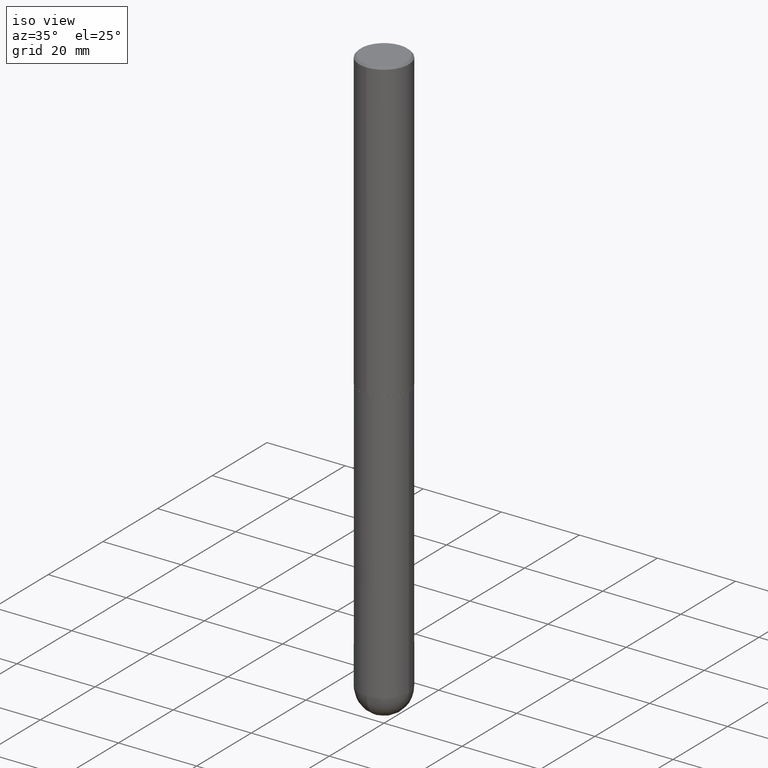
[diagram: clean part render]
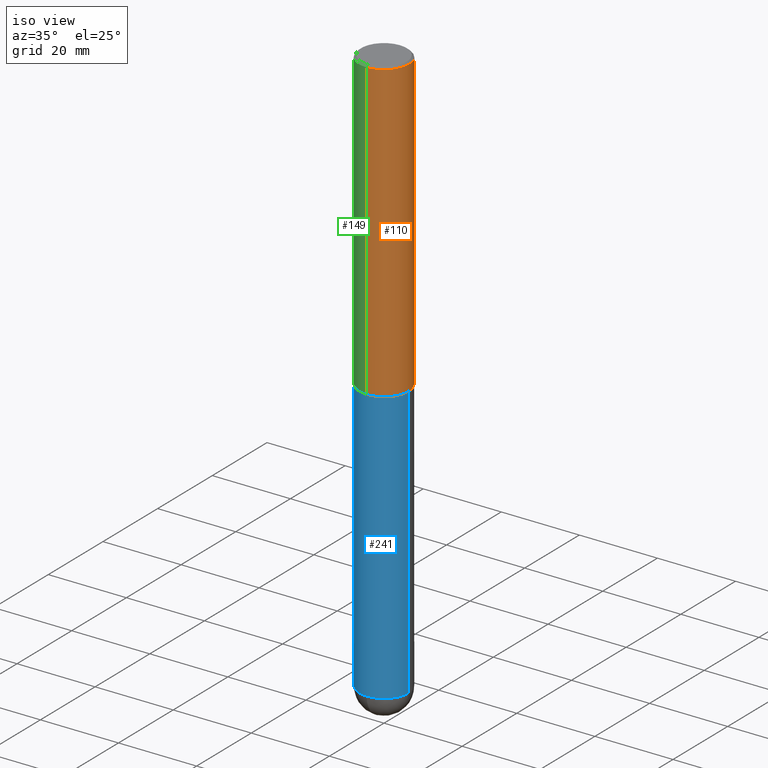
[diagram: same view with three faces highlighted in distinct colors, each labeled with its STEP entity id]
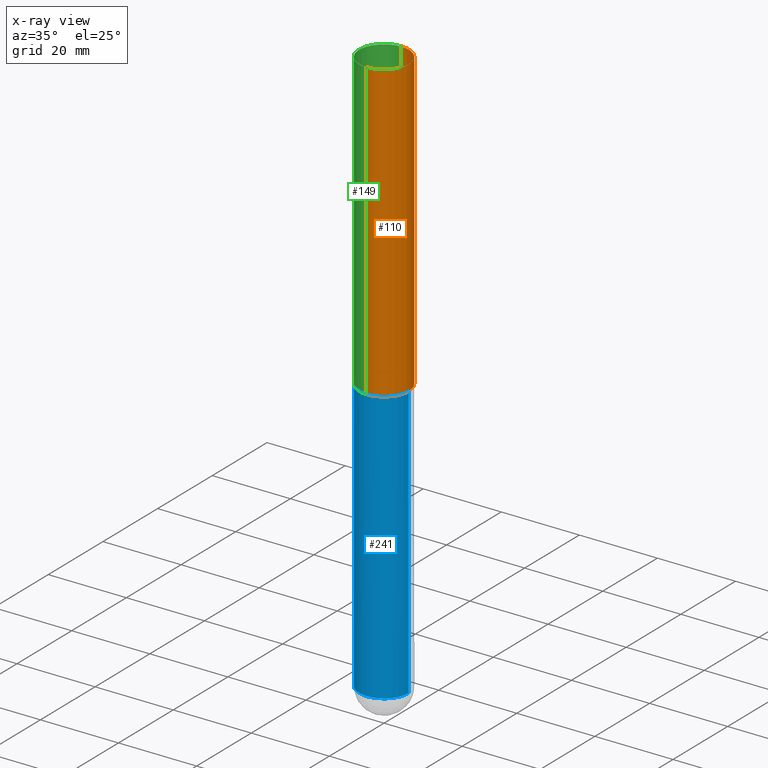
[diagram: x-ray of the same camera — body ghosted, the three highlighted faces saturated]
A machine part, iso view with three faces highlighted in distinct colors.
The next image is the same camera in x-ray (body ghosted, the three faces saturated) — at least one of them is partly hidden behind the body in this view.
Their STEP definitions:

[orange] entity #110 — the highlighted cylindrical surface (edge-blend (fillet) strip) has radius 6.35 mm, axis along (-0, 0, 1).
#14 = VECTOR ( 'NONE', #140, 39.37007874015748143 ) ;
#17 = VERTEX_POINT ( 'NONE', #394 ) ;
#21 = FACE_OUTER_BOUND ( 'NONE', #308, .T. ) ;
#35 = VERTEX_POINT ( 'NONE', #400 ) ;
#51 = DIRECTION ( 'NONE',  ( -2.445046103182867255E-29, 3.492086673601156067E-15, 1.000000000000000000 ) ) ;
#55 = CIRCLE ( 'NONE', #229, 0.2499999999999999167 ) ;
#56 = DIRECTION ( 'NONE',  ( -2.445046103182867255E-29, 3.492086673601156067E-15, 1.000000000000000000 ) ) ;
#61 = ORIENTED_EDGE ( 'NONE', *, *, #292, .T. ) ;
#69 = VERTEX_POINT ( 'NONE', #364 ) ;
#73 = VERTEX_POINT ( 'NONE', #326 ) ;
#87 = CYLINDRICAL_SURFACE ( 'NONE', #187, 0.2500000000000001110 ) ;
#103 = EDGE_CURVE ( 'NONE', #17, #69, #373, .T. ) ;
#110 = ADVANCED_FACE ( 'NONE', ( #21 ), #87, .T. ) ;
#116 = DIRECTION ( 'NONE',  ( -6.982962677686266711E-15, -1.000000000000000000, 3.492086673601156067E-15 ) ) ;
#126 = ORIENTED_EDGE ( 'NONE', *, *, #331, .F. ) ;
#127 = ORIENTED_EDGE ( 'NONE', *, *, #103, .T. ) ;
#140 = DIRECTION ( 'NONE',  ( -2.445046103182867535E-29, 3.492086673601156067E-15, 1.000000000000000000 ) ) ;
#150 = LINE ( 'NONE', #297, #256 ) ;
#154 = EDGE_CURVE ( 'NONE', #17, #35, #238, .T. ) ;
#174 = CARTESIAN_POINT ( 'NONE',  ( 7.332693263445419070E-29, -1.047276793412986863E-14, -2.999000000000000554 ) ) ;
#186 = ORIENTED_EDGE ( 'NONE', *, *, #154, .F. ) ;
#187 = AXIS2_PLACEMENT_3D ( 'NONE', #264, #401, #116 ) ;
#209 = CARTESIAN_POINT ( 'NONE',  ( 4.890092206365748558E-31, -6.984173347202331460E-17, -0.02000000000000005593 ) ) ;
#229 = AXIS2_PLACEMENT_3D ( 'NONE', #209, #56, #300 ) ;
#238 = LINE ( 'NONE', #332, #14 ) ;
#249 = AXIS2_PLACEMENT_3D ( 'NONE', #174, #51, #294 ) ;
#256 = VECTOR ( 'NONE', #266, 39.37007874015748143 ) ;
#264 = CARTESIAN_POINT ( 'NONE',  ( 0.000000000000000000, 0.000000000000000000, 0.000000000000000000 ) ) ;
#266 = DIRECTION ( 'NONE',  ( -2.445046103182867535E-29, 3.492086673601156067E-15, 1.000000000000000000 ) ) ;
#292 = EDGE_CURVE ( 'NONE', #69, #73, #150, .T. ) ;
#294 = DIRECTION ( 'NONE',  ( -6.982962677686265922E-15, -1.000000000000000000, 4.370956789862815627E-15 ) ) ;
#297 = CARTESIAN_POINT ( 'NONE',  ( 1.776356839400251254E-15, 0.2500000000000001110, -8.730216684002894111E-16 ) ) ;
#300 = DIRECTION ( 'NONE',  ( -6.982962677686265922E-15, -1.000000000000000000, 3.500180241882338444E-15 ) ) ;
#308 = EDGE_LOOP ( 'NONE', ( #127, #61, #126, #186 ) ) ;
#326 = CARTESIAN_POINT ( 'NONE',  ( 1.745740669421566480E-15, 0.2499999999999998612, -0.02000000000000093023 ) ) ;
#331 = EDGE_CURVE ( 'NONE', #35, #73, #55, .T. ) ;
#332 = CARTESIAN_POINT ( 'NONE',  ( -1.745740669421567467E-15, -0.2500000000000001110, 8.730216684002894111E-16 ) ) ;
#364 = CARTESIAN_POINT ( 'NONE',  ( 1.776356839400288724E-15, 0.2499999999999898415, -2.999000000000001442 ) ) ;
#373 = CIRCLE ( 'NONE', #249, 0.2500000000000003331 ) ;
#394 = CARTESIAN_POINT ( 'NONE',  ( -1.745740669421495680E-15, -0.2500000000000108247, -2.998999999999999222 ) ) ;
#400 = CARTESIAN_POINT ( 'NONE',  ( -1.715124499442881707E-15, -0.2500000000000000000, -0.01999999999999918163 ) ) ;
#401 = DIRECTION ( 'NONE',  ( -2.445046103182867255E-29, 3.492086673601156067E-15, 1.000000000000000000 ) ) ;

[blue] entity #241 — the highlighted cylindrical surface (edge-blend (fillet) strip) has radius 6.35 mm, axis along (-0, 0, 1).
#4 = CARTESIAN_POINT ( 'NONE',  ( -0.2500000000000000000, 1.776356839400250465E-15, -1.229733772563726445E-29 ) ) ;
#26 = VECTOR ( 'NONE', #48, 39.37007874015748143 ) ;
#36 = CIRCLE ( 'NONE', #219, 0.2500000000000000000 ) ;
#48 = DIRECTION ( 'NONE',  ( -2.445468806185136877E-29, 3.491481338843145188E-15, 1.000000000000000000 ) ) ;
#58 = EDGE_CURVE ( 'NONE', #200, #228, #83, .T. ) ;
#67 = FACE_OUTER_BOUND ( 'NONE', #346, .T. ) ;
#70 = AXIS2_PLACEMENT_3D ( 'NONE', #304, #227, #310 ) ;
#77 = DIRECTION ( 'NONE',  ( -2.445468806185136597E-29, 3.491481338843145583E-15, 1.000000000000000000 ) ) ;
#80 = EDGE_CURVE ( 'NONE', #195, #228, #287, .T. ) ;
#83 = LINE ( 'NONE', #205, #26 ) ;
#89 = VERTEX_POINT ( 'NONE', #366 ) ;
#93 = ORIENTED_EDGE ( 'NONE', *, *, #58, .T. ) ;
#96 = CARTESIAN_POINT ( 'NONE',  ( 0.2500000000000000000, -1.702097152686033033E-14, -5.750000000000000888 ) ) ;
#112 = CARTESIAN_POINT ( 'NONE',  ( -0.2500000000000000000, -1.349887401803851318E-14, -3.000000000000000444 ) ) ;
#119 = DIRECTION ( 'NONE',  ( 1.000000000000000000, -6.982962677686262766E-15, 0.000000000000000000 ) ) ;
#129 = VECTOR ( 'NONE', #407, 39.37007874015748143 ) ;
#175 = EDGE_CURVE ( 'NONE', #89, #200, #353, .T. ) ;
#194 = CYLINDRICAL_SURFACE ( 'NONE', #70, 0.2500000000000000000 ) ;
#195 = VERTEX_POINT ( 'NONE', #112 ) ;
#200 = VERTEX_POINT ( 'NONE', #96 ) ;
#203 = CARTESIAN_POINT ( 'NONE',  ( 7.336406418555409790E-29, -1.047444401652943635E-14, -3.000000000000000444 ) ) ;
#205 = CARTESIAN_POINT ( 'NONE',  ( 0.2500000000000000000, -1.745740669421566678E-15, 1.219044193948983948E-29 ) ) ;
#219 = AXIS2_PLACEMENT_3D ( 'NONE', #340, #269, #119 ) ;
#227 = DIRECTION ( 'NONE',  ( -2.445468806185136597E-29, 3.491481338843145583E-15, 1.000000000000000000 ) ) ;
#228 = VERTEX_POINT ( 'NONE', #349 ) ;
#232 = CARTESIAN_POINT ( 'NONE',  ( 1.406144563556453767E-28, -2.007601769834809252E-14, -5.750000000000000888 ) ) ;
#241 = ADVANCED_FACE ( 'NONE', ( #67 ), #194, .T. ) ;
#242 = AXIS2_PLACEMENT_3D ( 'NONE', #203, #259, #324 ) ;
#253 = VERTEX_POINT ( 'NONE', #377 ) ;
#254 = ORIENTED_EDGE ( 'NONE', *, *, #342, .T. ) ;
#259 = DIRECTION ( 'NONE',  ( -2.445468806185136597E-29, 3.491481338843145583E-15, 1.000000000000000000 ) ) ;
#269 = DIRECTION ( 'NONE',  ( -2.445468806185136597E-29, 3.491481338843145583E-15, 1.000000000000000000 ) ) ;
#280 = LINE ( 'NONE', #4, #129 ) ;
#281 = ORIENTED_EDGE ( 'NONE', *, *, #412, .F. ) ;
#287 = CIRCLE ( 'NONE', #242, 0.2500000000000000000 ) ;
#304 = CARTESIAN_POINT ( 'NONE',  ( 0.000000000000000000, 0.000000000000000000, 0.000000000000000000 ) ) ;
#310 = DIRECTION ( 'NONE',  ( 1.000000000000000000, -6.982962677686266711E-15, 4.876176775795935793E-29 ) ) ;
#312 = ORIENTED_EDGE ( 'NONE', *, *, #175, .T. ) ;
#324 = DIRECTION ( 'NONE',  ( 1.000000000000000000, -6.982962677686262766E-15, 0.000000000000000000 ) ) ;
#338 = AXIS2_PLACEMENT_3D ( 'NONE', #232, #77, #358 ) ;
#340 = CARTESIAN_POINT ( 'NONE',  ( 1.406144563556453767E-28, -2.007601769834809252E-14, -5.750000000000000888 ) ) ;
#342 = EDGE_CURVE ( 'NONE', #253, #89, #36, .T. ) ;
#346 = EDGE_LOOP ( 'NONE', ( #281, #254, #312, #93, #350 ) ) ;
#349 = CARTESIAN_POINT ( 'NONE',  ( 0.2500000000000000000, -1.222018468595100303E-14, -3.000000000000000444 ) ) ;
#350 = ORIENTED_EDGE ( 'NONE', *, *, #80, .F. ) ;
#353 = CIRCLE ( 'NONE', #338, 0.2500000000000000000 ) ;
#358 = DIRECTION ( 'NONE',  ( 1.000000000000000000, -6.982962677686262766E-15, 0.000000000000000000 ) ) ;
#366 = CARTESIAN_POINT ( 'NONE',  ( -1.776356839400113597E-15, -0.2500000000000206501, -5.750000000000000000 ) ) ;
#377 = CARTESIAN_POINT ( 'NONE',  ( -0.2500000000000000000, -1.349887401803851318E-14, -5.750000000000000888 ) ) ;
#407 = DIRECTION ( 'NONE',  ( -2.445468806185136877E-29, 3.491481338843145188E-15, 1.000000000000000000 ) ) ;
#412 = EDGE_CURVE ( 'NONE', #253, #195, #280, .T. ) ;

[green] entity #149 — the highlighted cylindrical surface (edge-blend (fillet) strip) has radius 6.35 mm, axis along (-0, 0, 1).
#2 = AXIS2_PLACEMENT_3D ( 'NONE', #291, #148, #118 ) ;
#11 = DIRECTION ( 'NONE',  ( -6.982962677686265922E-15, -1.000000000000000000, 4.370956789862815627E-15 ) ) ;
#14 = VECTOR ( 'NONE', #140, 39.37007874015748143 ) ;
#17 = VERTEX_POINT ( 'NONE', #394 ) ;
#25 = EDGE_CURVE ( 'NONE', #73, #35, #124, .T. ) ;
#35 = VERTEX_POINT ( 'NONE', #400 ) ;
#59 = ORIENTED_EDGE ( 'NONE', *, *, #154, .T. ) ;
#69 = VERTEX_POINT ( 'NONE', #364 ) ;
#73 = VERTEX_POINT ( 'NONE', #326 ) ;
#92 = DIRECTION ( 'NONE',  ( -2.445046103182867255E-29, 3.492086673601156067E-15, 1.000000000000000000 ) ) ;
#118 = DIRECTION ( 'NONE',  ( -6.982962677686266711E-15, -1.000000000000000000, 3.492086673601156067E-15 ) ) ;
#124 = CIRCLE ( 'NONE', #311, 0.2499999999999999167 ) ;
#140 = DIRECTION ( 'NONE',  ( -2.445046103182867535E-29, 3.492086673601156067E-15, 1.000000000000000000 ) ) ;
#148 = DIRECTION ( 'NONE',  ( -2.445046103182867255E-29, 3.492086673601156067E-15, 1.000000000000000000 ) ) ;
#149 = ADVANCED_FACE ( 'NONE', ( #210 ), #179, .T. ) ;
#150 = LINE ( 'NONE', #297, #256 ) ;
#154 = EDGE_CURVE ( 'NONE', #17, #35, #238, .T. ) ;
#162 = AXIS2_PLACEMENT_3D ( 'NONE', #386, #92, #11 ) ;
#176 = DIRECTION ( 'NONE',  ( -6.982962677686265922E-15, -1.000000000000000000, 3.500180241882338444E-15 ) ) ;
#179 = CYLINDRICAL_SURFACE ( 'NONE', #2, 0.2500000000000001110 ) ;
#191 = EDGE_LOOP ( 'NONE', ( #387, #391, #59, #348 ) ) ;
#210 = FACE_OUTER_BOUND ( 'NONE', #191, .T. ) ;
#238 = LINE ( 'NONE', #332, #14 ) ;
#256 = VECTOR ( 'NONE', #266, 39.37007874015748143 ) ;
#257 = EDGE_CURVE ( 'NONE', #69, #17, #275, .T. ) ;
#266 = DIRECTION ( 'NONE',  ( -2.445046103182867535E-29, 3.492086673601156067E-15, 1.000000000000000000 ) ) ;
#275 = CIRCLE ( 'NONE', #162, 0.2500000000000003331 ) ;
#291 = CARTESIAN_POINT ( 'NONE',  ( 0.000000000000000000, 0.000000000000000000, 0.000000000000000000 ) ) ;
#292 = EDGE_CURVE ( 'NONE', #69, #73, #150, .T. ) ;
#293 = DIRECTION ( 'NONE',  ( -2.445046103182867255E-29, 3.492086673601156067E-15, 1.000000000000000000 ) ) ;
#297 = CARTESIAN_POINT ( 'NONE',  ( 1.776356839400251254E-15, 0.2500000000000001110, -8.730216684002894111E-16 ) ) ;
#311 = AXIS2_PLACEMENT_3D ( 'NONE', #402, #293, #176 ) ;
#326 = CARTESIAN_POINT ( 'NONE',  ( 1.745740669421566480E-15, 0.2499999999999998612, -0.02000000000000093023 ) ) ;
#332 = CARTESIAN_POINT ( 'NONE',  ( -1.745740669421567467E-15, -0.2500000000000001110, 8.730216684002894111E-16 ) ) ;
#348 = ORIENTED_EDGE ( 'NONE', *, *, #25, .F. ) ;
#364 = CARTESIAN_POINT ( 'NONE',  ( 1.776356839400288724E-15, 0.2499999999999898415, -2.999000000000001442 ) ) ;
#386 = CARTESIAN_POINT ( 'NONE',  ( 7.332693263445419070E-29, -1.047276793412986863E-14, -2.999000000000000554 ) ) ;
#387 = ORIENTED_EDGE ( 'NONE', *, *, #292, .F. ) ;
#391 = ORIENTED_EDGE ( 'NONE', *, *, #257, .T. ) ;
#394 = CARTESIAN_POINT ( 'NONE',  ( -1.745740669421495680E-15, -0.2500000000000108247, -2.998999999999999222 ) ) ;
#400 = CARTESIAN_POINT ( 'NONE',  ( -1.715124499442881707E-15, -0.2500000000000000000, -0.01999999999999918163 ) ) ;
#402 = CARTESIAN_POINT ( 'NONE',  ( 4.890092206365748558E-31, -6.984173347202331460E-17, -0.02000000000000005593 ) ) ;